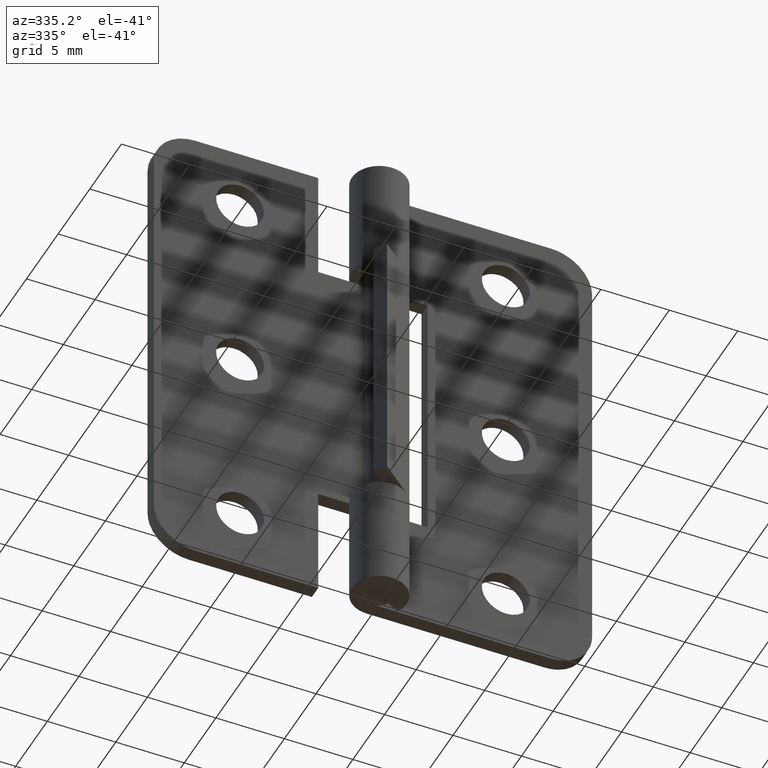
[diagram: clean part render]
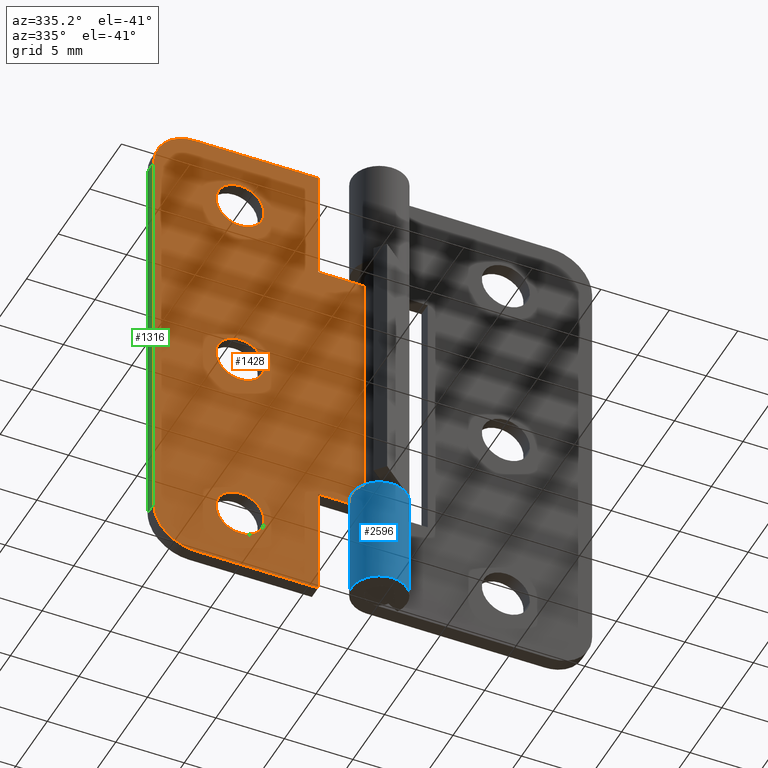
[diagram: same view with three faces highlighted in distinct colors, each labeled with its STEP entity id]
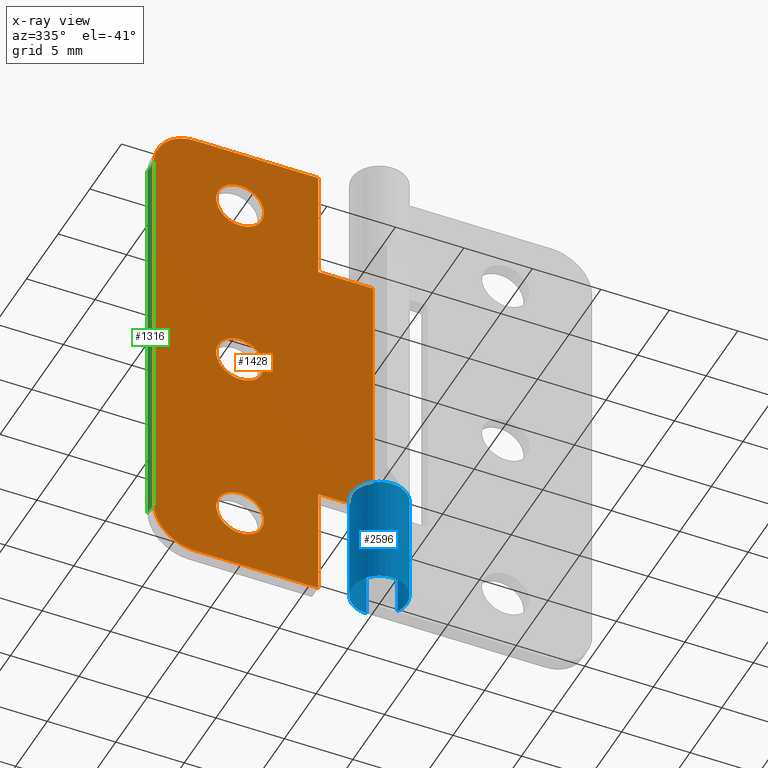
[diagram: x-ray of the same camera — body ghosted, the three highlighted faces saturated]
A machine part, auxiliary view with three faces highlighted in distinct colors.
The next image is the same camera in x-ray (body ghosted, the three faces saturated) — at least one of them is partly hidden behind the body in this view.
Their STEP definitions:

[orange] entity #1428 — the highlighted face is a freeform B-spline surface patch.
#347=CARTESIAN_POINT('',(-7.955391665975188,1.0,31.362696582372578));
#348=VERTEX_POINT('',#347);
#354=CARTESIAN_POINT('',(-9.699997000000000,1.0,33.250000000000000));
#355=VERTEX_POINT('',#354);
#356=CARTESIAN_POINT('',(-7.955391665975188,1.0,31.362696582372582));
#357=CARTESIAN_POINT('',(-7.949997000000001,1.0,31.431242312632406));
#358=CARTESIAN_POINT('',(-7.949997000000001,1.0,31.500000000000000));
#359=CARTESIAN_POINT('',(-7.949997000000001,1.0,33.249999999999993));
#360=CARTESIAN_POINT('',(-9.699997000000000,1.0,33.250000000000000));
#368=(BOUNDED_CURVE()B_SPLINE_CURVE(2,(#356,#357,#358,#359,#360),.UNSPECIFIED.,.F.,.U.)B_SPLINE_CURVE_WITH_KNOTS((3,2,3),(0.736331300612389,0.750000000000000,1.0),.UNSPECIFIED.)CURVE()GEOMETRIC_REPRESENTATION_ITEM()RATIONAL_B_SPLINE_CURVE((0.969723356129288,0.983986122557476,1.0,0.707106781186547,1.0))REPRESENTATION_ITEM(''));
#369=EDGE_CURVE('',#348,#355,#368,.T.);
#371=CARTESIAN_POINT('',(-11.444602334024809,1.0,31.637303417627422));
#372=VERTEX_POINT('',#371);
#373=CARTESIAN_POINT('',(-9.699997000000000,1.0,33.250000000000000));
#374=CARTESIAN_POINT('',(-11.317680360208970,1.0,33.250000000000000));
#375=CARTESIAN_POINT('',(-11.444602334024816,1.0,31.637303417627418));
#383=(BOUNDED_CURVE()B_SPLINE_CURVE(2,(#373,#374,#375),.UNSPECIFIED.,.F.,.U.)B_SPLINE_CURVE_WITH_KNOTS((3,3),(0.0,0.236331300612389),.UNSPECIFIED.)CURVE()GEOMETRIC_REPRESENTATION_ITEM()RATIONAL_B_SPLINE_CURVE((1.0,0.723120658629071,0.969723356129288))REPRESENTATION_ITEM(''));
#384=EDGE_CURVE('',#355,#372,#383,.T.);
#430=CARTESIAN_POINT('',(-9.699997000000000,1.0,29.750000000000000));
#431=VERTEX_POINT('',#430);
#432=CARTESIAN_POINT('',(-11.444602334024809,1.0,31.637303417627429));
#433=CARTESIAN_POINT('',(-11.449997000000003,1.0,31.568757687367601));
#434=CARTESIAN_POINT('',(-11.449997000000000,1.0,31.500000000000000));
#435=CARTESIAN_POINT('',(-11.449997000000003,1.0,29.750000000000007));
#436=CARTESIAN_POINT('',(-9.699997000000000,1.0,29.750000000000000));
#444=(BOUNDED_CURVE()B_SPLINE_CURVE(2,(#432,#433,#434,#435,#436),.UNSPECIFIED.,.F.,.U.)B_SPLINE_CURVE_WITH_KNOTS((3,2,3),(0.236331300612389,0.250000000000000,0.500000000000000),.UNSPECIFIED.)CURVE()GEOMETRIC_REPRESENTATION_ITEM()RATIONAL_B_SPLINE_CURVE((0.969723356129288,0.983986122557476,1.0,0.707106781186547,1.0))REPRESENTATION_ITEM(''));
#445=EDGE_CURVE('',#372,#431,#444,.T.);
#447=CARTESIAN_POINT('',(-9.699997000000000,1.0,29.750000000000000));
#448=CARTESIAN_POINT('',(-8.082313639791032,1.0,29.750000000000004));
#449=CARTESIAN_POINT('',(-7.955391665975188,1.0,31.362696582372578));
#457=(BOUNDED_CURVE()B_SPLINE_CURVE(2,(#447,#448,#449),.UNSPECIFIED.,.F.,.U.)B_SPLINE_CURVE_WITH_KNOTS((3,3),(0.500000000000000,0.736331300612389),.UNSPECIFIED.)CURVE()GEOMETRIC_REPRESENTATION_ITEM()RATIONAL_B_SPLINE_CURVE((1.0,0.723120658629071,0.969723356129288))REPRESENTATION_ITEM(''));
#458=EDGE_CURVE('',#431,#348,#457,.T.);
#529=CARTESIAN_POINT('',(-7.955391665975188,1.0,17.862696582372571));
#530=VERTEX_POINT('',#529);
#536=CARTESIAN_POINT('',(-9.699997000000000,1.0,19.750000000000000));
#537=VERTEX_POINT('',#536);
#538=CARTESIAN_POINT('',(-7.955391665975188,1.0,17.862696582372575));
#539=CARTESIAN_POINT('',(-7.949997000000001,1.0,17.931242312632399));
#540=CARTESIAN_POINT('',(-7.949997000000001,1.0,18.0));
#541=CARTESIAN_POINT('',(-7.949997000000001,1.0,19.749999999999996));
#542=CARTESIAN_POINT('',(-9.699997000000000,1.0,19.750000000000000));
#550=(BOUNDED_CURVE()B_SPLINE_CURVE(2,(#538,#539,#540,#541,#542),.UNSPECIFIED.,.F.,.U.)B_SPLINE_CURVE_WITH_KNOTS((3,2,3),(0.736331300612388,0.750000000000000,1.0),.UNSPECIFIED.)CURVE()GEOMETRIC_REPRESENTATION_ITEM()RATIONAL_B_SPLINE_CURVE((0.969723356129287,0.983986122557476,1.0,0.707106781186547,1.0))REPRESENTATION_ITEM(''));
#551=EDGE_CURVE('',#530,#537,#550,.T.);
#553=CARTESIAN_POINT('',(-11.444602334024809,1.0,18.137303417627429));
#554=VERTEX_POINT('',#553);
#555=CARTESIAN_POINT('',(-9.699997000000000,1.0,19.750000000000000));
#556=CARTESIAN_POINT('',(-11.317680360208964,1.0,19.749999999999993));
#557=CARTESIAN_POINT('',(-11.444602334024809,1.0,18.137303417627432));
#565=(BOUNDED_CURVE()B_SPLINE_CURVE(2,(#555,#556,#557),.UNSPECIFIED.,.F.,.U.)B_SPLINE_CURVE_WITH_KNOTS((3,3),(0.0,0.236331300612388),.UNSPECIFIED.)CURVE()GEOMETRIC_REPRESENTATION_ITEM()RATIONAL_B_SPLINE_CURVE((1.0,0.723120658629072,0.969723356129287))REPRESENTATION_ITEM(''));
#566=EDGE_CURVE('',#537,#554,#565,.T.);
#612=CARTESIAN_POINT('',(-9.699997000000000,1.0,16.250000000000000));
#613=VERTEX_POINT('',#612);
#614=CARTESIAN_POINT('',(-11.444602334024813,1.0,18.137303417627425));
#615=CARTESIAN_POINT('',(-11.449997000000000,1.0,18.068757687367604));
#616=CARTESIAN_POINT('',(-11.449997000000000,1.0,18.0));
#617=CARTESIAN_POINT('',(-11.449997000000003,1.0,16.249999999999993));
#618=CARTESIAN_POINT('',(-9.699997000000000,1.0,16.250000000000000));
#626=(BOUNDED_CURVE()B_SPLINE_CURVE(2,(#614,#615,#616,#617,#618),.UNSPECIFIED.,.F.,.U.)B_SPLINE_CURVE_WITH_KNOTS((3,2,3),(0.236331300612388,0.250000000000000,0.500000000000000),.UNSPECIFIED.)CURVE()GEOMETRIC_REPRESENTATION_ITEM()RATIONAL_B_SPLINE_CURVE((0.969723356129287,0.983986122557476,1.0,0.707106781186547,1.0))REPRESENTATION_ITEM(''));
#627=EDGE_CURVE('',#554,#613,#626,.T.);
#629=CARTESIAN_POINT('',(-9.699997000000000,1.0,16.250000000000000));
#630=CARTESIAN_POINT('',(-8.082313639791032,1.0,16.249999999999996));
#631=CARTESIAN_POINT('',(-7.955391665975188,1.0,17.862696582372571));
#639=(BOUNDED_CURVE()B_SPLINE_CURVE(2,(#629,#630,#631),.UNSPECIFIED.,.F.,.U.)B_SPLINE_CURVE_WITH_KNOTS((3,3),(0.500000000000000,0.736331300612389),.UNSPECIFIED.)CURVE()GEOMETRIC_REPRESENTATION_ITEM()RATIONAL_B_SPLINE_CURVE((1.0,0.723120658629071,0.969723356129288))REPRESENTATION_ITEM(''));
#640=EDGE_CURVE('',#613,#530,#639,.T.);
#711=CARTESIAN_POINT('',(-7.955391665975188,1.0,4.362696582372575));
#712=VERTEX_POINT('',#711);
#718=CARTESIAN_POINT('',(-9.699997000000000,1.0,6.249999999999999));
#719=VERTEX_POINT('',#718);
#720=CARTESIAN_POINT('',(-7.955391665975188,1.0,4.362696582372575));
#721=CARTESIAN_POINT('',(-7.949997000000001,1.0,4.431242312632401));
#722=CARTESIAN_POINT('',(-7.949997000000001,1.0,4.500000000000000));
#723=CARTESIAN_POINT('',(-7.949997000000001,1.0,6.249999999999999));
#724=CARTESIAN_POINT('',(-9.699997000000000,1.0,6.249999999999999));
#732=(BOUNDED_CURVE()B_SPLINE_CURVE(2,(#720,#721,#722,#723,#724),.UNSPECIFIED.,.F.,.U.)B_SPLINE_CURVE_WITH_KNOTS((3,2,3),(0.736331300612389,0.750000000000000,1.0),.UNSPECIFIED.)CURVE()GEOMETRIC_REPRESENTATION_ITEM()RATIONAL_B_SPLINE_CURVE((0.969723356129287,0.983986122557476,1.0,0.707106781186547,1.0))REPRESENTATION_ITEM(''));
#733=EDGE_CURVE('',#712,#719,#732,.T.);
#735=CARTESIAN_POINT('',(-11.444602334024809,1.0,4.637303417627425));
#736=VERTEX_POINT('',#735);
#737=CARTESIAN_POINT('',(-9.699997000000000,1.0,6.249999999999999));
#738=CARTESIAN_POINT('',(-11.317680360208964,1.0,6.249999999999998));
#739=CARTESIAN_POINT('',(-11.444602334024818,1.0,4.637303417627424));
#747=(BOUNDED_CURVE()B_SPLINE_CURVE(2,(#737,#738,#739),.UNSPECIFIED.,.F.,.U.)B_SPLINE_CURVE_WITH_KNOTS((3,3),(0.0,0.236331300612389),.UNSPECIFIED.)CURVE()GEOMETRIC_REPRESENTATION_ITEM()RATIONAL_B_SPLINE_CURVE((1.0,0.723120658629071,0.969723356129287))REPRESENTATION_ITEM(''));
#748=EDGE_CURVE('',#719,#736,#747,.T.);
#794=CARTESIAN_POINT('',(-9.699997000000000,1.0,2.750000000000000));
#795=VERTEX_POINT('',#794);
#796=CARTESIAN_POINT('',(-11.444602334024818,1.0,4.637303417627424));
#797=CARTESIAN_POINT('',(-11.449996999999996,1.0,4.568757687367600));
#798=CARTESIAN_POINT('',(-11.449997000000000,1.0,4.500000000000000));
#799=CARTESIAN_POINT('',(-11.449997000000003,1.0,2.749999999999999));
#800=CARTESIAN_POINT('',(-9.699997000000000,1.0,2.750000000000000));
#808=(BOUNDED_CURVE()B_SPLINE_CURVE(2,(#796,#797,#798,#799,#800),.UNSPECIFIED.,.F.,.U.)B_SPLINE_CURVE_WITH_KNOTS((3,2,3),(0.236331300612389,0.250000000000000,0.500000000000000),.UNSPECIFIED.)CURVE()GEOMETRIC_REPRESENTATION_ITEM()RATIONAL_B_SPLINE_CURVE((0.969723356129287,0.983986122557476,1.0,0.707106781186547,1.0))REPRESENTATION_ITEM(''));
#809=EDGE_CURVE('',#736,#795,#808,.T.);
#811=CARTESIAN_POINT('',(-9.699997000000000,1.0,2.750000000000000));
#812=CARTESIAN_POINT('',(-8.082313639791032,1.0,2.750000000000000));
#813=CARTESIAN_POINT('',(-7.955391665975188,1.0,4.362696582372576));
#821=(BOUNDED_CURVE()B_SPLINE_CURVE(2,(#811,#812,#813),.UNSPECIFIED.,.F.,.U.)B_SPLINE_CURVE_WITH_KNOTS((3,3),(0.500000000000000,0.736331300612389),.UNSPECIFIED.)CURVE()GEOMETRIC_REPRESENTATION_ITEM()RATIONAL_B_SPLINE_CURVE((1.0,0.723120658629071,0.969723356129288))REPRESENTATION_ITEM(''));
#822=EDGE_CURVE('',#795,#712,#821,.T.);
#855=CARTESIAN_POINT('',(-13.0,1.0,36.0));
#856=VERTEX_POINT('',#855);
#857=CARTESIAN_POINT('',(-16.0,1.0,33.0));
#858=VERTEX_POINT('',#857);
#859=CARTESIAN_POINT('',(-13.0,1.0,36.000000000000007));
#860=CARTESIAN_POINT('',(-15.999999999999998,1.0,36.000000000000014));
#861=CARTESIAN_POINT('',(-16.0,1.0,33.0));
#869=(BOUNDED_CURVE()B_SPLINE_CURVE(2,(#859,#860,#861),.UNSPECIFIED.,.F.,.U.)CURVE()GEOMETRIC_REPRESENTATION_ITEM()QUASI_UNIFORM_CURVE()RATIONAL_B_SPLINE_CURVE((1.0,0.707106781186548,1.0))REPRESENTATION_ITEM(''));
#870=EDGE_CURVE('',#856,#858,#869,.T.);
#916=CARTESIAN_POINT('',(-16.0,1.0,3.0));
#917=VERTEX_POINT('',#916);
#918=CARTESIAN_POINT('',(-13.0,1.0,0.0));
#919=VERTEX_POINT('',#918);
#920=CARTESIAN_POINT('',(-16.0,1.0,3.0));
#921=CARTESIAN_POINT('',(-15.999999999999998,1.0,0.0));
#922=CARTESIAN_POINT('',(-13.0,1.0,0.0));
#930=(BOUNDED_CURVE()B_SPLINE_CURVE(2,(#920,#921,#922),.UNSPECIFIED.,.F.,.U.)CURVE()GEOMETRIC_REPRESENTATION_ITEM()QUASI_UNIFORM_CURVE()RATIONAL_B_SPLINE_CURVE((1.0,0.707106781186548,1.0))REPRESENTATION_ITEM(''));
#931=EDGE_CURVE('',#917,#919,#930,.T.);
#968=CARTESIAN_POINT('',(-4.0,1.0,8.250000000000091));
#969=VERTEX_POINT('',#968);
#1022=CARTESIAN_POINT('',(6.123032E-017,1.0,8.250000000000091));
#1023=VERTEX_POINT('',#1022);
#1039=CARTESIAN_POINT('',(6.123032E-017,1.0,8.250000000000091));
#1040=CARTESIAN_POINT('',(-4.0,1.0,8.250000000000091));
#1041=QUASI_UNIFORM_CURVE('',1,(#1039,#1040),.UNSPECIFIED.,.F.,.U.);
#1042=EDGE_CURVE('',#1023,#969,#1041,.T.);
#1052=CARTESIAN_POINT('',(-4.0,1.0,27.750000000000000));
#1053=VERTEX_POINT('',#1052);
#1061=CARTESIAN_POINT('',(6.123032E-017,1.0,27.750000000000000));
#1062=VERTEX_POINT('',#1061);
#1063=CARTESIAN_POINT('',(6.123032E-017,1.0,27.750000000000000));
#1064=CARTESIAN_POINT('',(-4.0,1.0,27.750000000000000));
#1065=QUASI_UNIFORM_CURVE('',1,(#1063,#1064),.UNSPECIFIED.,.F.,.U.);
#1066=EDGE_CURVE('',#1062,#1053,#1065,.T.);
#1156=CARTESIAN_POINT('',(6.123032E-017,1.0,27.750000000000000));
#1157=CARTESIAN_POINT('',(6.123032E-017,1.0,8.250000000000091));
#1158=QUASI_UNIFORM_CURVE('',1,(#1156,#1157),.UNSPECIFIED.,.F.,.U.);
#1159=EDGE_CURVE('',#1062,#1023,#1158,.T.);
#1246=CARTESIAN_POINT('',(-4.0,1.0,36.0));
#1247=VERTEX_POINT('',#1246);
#1248=CARTESIAN_POINT('',(-4.0,1.0,27.750000000000000));
#1249=CARTESIAN_POINT('',(-4.0,1.0,36.0));
#1250=QUASI_UNIFORM_CURVE('',1,(#1248,#1249),.UNSPECIFIED.,.F.,.U.);
#1251=EDGE_CURVE('',#1053,#1247,#1250,.T.);
#1274=CARTESIAN_POINT('',(-4.0,1.0,0.0));
#1275=VERTEX_POINT('',#1274);
#1276=CARTESIAN_POINT('',(-13.0,1.0,0.0));
#1277=CARTESIAN_POINT('',(-4.0,1.0,0.0));
#1278=QUASI_UNIFORM_CURVE('',1,(#1276,#1277),.UNSPECIFIED.,.F.,.U.);
#1279=EDGE_CURVE('',#919,#1275,#1278,.T.);
#1308=CARTESIAN_POINT('',(-16.0,1.0,33.0));
#1309=CARTESIAN_POINT('',(-16.0,1.0,3.0));
#1310=QUASI_UNIFORM_CURVE('',1,(#1308,#1309),.UNSPECIFIED.,.F.,.U.);
#1311=EDGE_CURVE('',#858,#917,#1310,.T.);
#1328=CARTESIAN_POINT('',(-4.0,1.0,36.0));
#1329=CARTESIAN_POINT('',(-13.0,1.0,36.0));
#1330=QUASI_UNIFORM_CURVE('',1,(#1328,#1329),.UNSPECIFIED.,.F.,.U.);
#1331=EDGE_CURVE('',#1247,#856,#1330,.T.);
#1343=CARTESIAN_POINT('',(-4.0,1.0,0.0));
#1344=CARTESIAN_POINT('',(-4.0,1.0,8.250000000000091));
#1345=QUASI_UNIFORM_CURVE('',1,(#1343,#1344),.UNSPECIFIED.,.F.,.U.);
#1346=EDGE_CURVE('',#1275,#969,#1345,.T.);
#1393=CARTESIAN_POINT('',(-16.799199968988891,1.0,37.798199930225010));
#1394=CARTESIAN_POINT('',(0.799200398142338,1.0,37.798199930225010));
#1395=CARTESIAN_POINT('',(-16.799199968988891,1.0,-1.798200895820258));
#1396=CARTESIAN_POINT('',(0.799200398142338,1.0,-1.798200895820258));
#1397=B_SPLINE_SURFACE_WITH_KNOTS('',1,1,((#1393,#1395),(#1394,#1396)),.UNSPECIFIED.,.F.,.F.,.U.,(2,2),(2,2),(0.0,17.598400367131230),(0.0,39.596400826045269),.UNSPECIFIED.);
#1398=ORIENTED_EDGE('',*,*,#1311,.T.);
#1399=ORIENTED_EDGE('',*,*,#931,.T.);
#1400=ORIENTED_EDGE('',*,*,#1279,.T.);
#1401=ORIENTED_EDGE('',*,*,#1346,.T.);
#1402=ORIENTED_EDGE('',*,*,#1042,.F.);
#1403=ORIENTED_EDGE('',*,*,#1159,.F.);
#1404=ORIENTED_EDGE('',*,*,#1066,.T.);
#1405=ORIENTED_EDGE('',*,*,#1251,.T.);
#1406=ORIENTED_EDGE('',*,*,#1331,.T.);
#1407=ORIENTED_EDGE('',*,*,#870,.T.);
#1408=EDGE_LOOP('',(#1398,#1399,#1400,#1401,#1402,#1403,#1404,#1405,#1406,#1407));
#1409=FACE_OUTER_BOUND('',#1408,.T.);
#1410=ORIENTED_EDGE('',*,*,#822,.F.);
#1411=ORIENTED_EDGE('',*,*,#809,.F.);
#1412=ORIENTED_EDGE('',*,*,#748,.F.);
#1413=ORIENTED_EDGE('',*,*,#733,.F.);
#1414=EDGE_LOOP('',(#1410,#1411,#1412,#1413));
#1415=FACE_BOUND('',#1414,.T.);
#1416=ORIENTED_EDGE('',*,*,#640,.F.);
#1417=ORIENTED_EDGE('',*,*,#627,.F.);
#1418=ORIENTED_EDGE('',*,*,#566,.F.);
#1419=ORIENTED_EDGE('',*,*,#551,.F.);
#1420=EDGE_LOOP('',(#1416,#1417,#1418,#1419));
#1421=FACE_BOUND('',#1420,.T.);
#1422=ORIENTED_EDGE('',*,*,#458,.F.);
#1423=ORIENTED_EDGE('',*,*,#445,.F.);
#1424=ORIENTED_EDGE('',*,*,#384,.F.);
#1425=ORIENTED_EDGE('',*,*,#369,.F.);
#1426=EDGE_LOOP('',(#1422,#1423,#1424,#1425));
#1427=FACE_BOUND('',#1426,.T.);
#1428=ADVANCED_FACE('',(#1409,#1415,#1421,#1427),#1397,.F.);

[blue] entity #2596 — the highlighted face is a freeform B-spline surface patch.
#2159=CARTESIAN_POINT('',(-3.673807E-016,2.0,8.250000000000000));
#2160=VERTEX_POINT('',#2159);
#2166=CARTESIAN_POINT('',(1.759971590679805,0.950000000000000,8.250000000000000));
#2167=VERTEX_POINT('',#2166);
#2168=CARTESIAN_POINT('',(0.0,2.0,8.250000000000000));
#2169=CARTESIAN_POINT('',(-1.523311426391113,2.000000000000000,8.250000000000000));
#2170=CARTESIAN_POINT('',(-1.928096575312494,0.531454227820452,8.250000000000000));
#2171=CARTESIAN_POINT('',(-2.332881724233873,-0.937091544359094,8.250000000000000));
#2172=CARTESIAN_POINT('',(-1.024695076595961,-1.717556403731766,8.250000000000000));
#2173=CARTESIAN_POINT('',(0.283491571041951,-2.498021263104438,8.250000000000000));
#2174=CARTESIAN_POINT('',(1.383518044628767,-1.444256840103794,8.250000000000000));
#2175=CARTESIAN_POINT('',(2.483544518215582,-0.390492417103149,8.250000000000000));
#2176=CARTESIAN_POINT('',(1.759971590679806,0.949999999999997,8.250000000000000));
#2184=(BOUNDED_CURVE()B_SPLINE_CURVE(2,(#2168,#2169,#2170,#2171,#2172,#2173,#2174,#2175,#2176),.UNSPECIFIED.,.F.,.U.)B_SPLINE_CURVE_WITH_KNOTS((3,2,2,2,3),(0.0,0.250000000000000,0.500000000000000,0.750000000000000,1.0),.UNSPECIFIED.)CURVE()GEOMETRIC_REPRESENTATION_ITEM()RATIONAL_B_SPLINE_CURVE((1.0,0.795527219493534,1.0,0.795527219493534,1.0,0.795527219493534,1.0,0.795527219493534,1.0))REPRESENTATION_ITEM(''));
#2185=EDGE_CURVE('',#2160,#2167,#2184,.T.);
#2319=CARTESIAN_POINT('',(-3.673819E-016,2.0,0.0));
#2320=VERTEX_POINT('',#2319);
#2355=CARTESIAN_POINT('',(1.759971590679800,0.950000000000000,0.0));
#2356=VERTEX_POINT('',#2355);
#2362=CARTESIAN_POINT('',(1.759971590679803,0.950000000000002,0.0));
#2363=CARTESIAN_POINT('',(2.483544518215584,-0.390492417103142,0.0));
#2364=CARTESIAN_POINT('',(1.383518044628770,-1.444256840103790,0.0));
#2365=CARTESIAN_POINT('',(0.283491571041956,-2.498021263104437,0.0));
#2366=CARTESIAN_POINT('',(-1.024695076595959,-1.717556403731767,0.0));
#2367=CARTESIAN_POINT('',(-2.332881724233873,-0.937091544359097,0.0));
#2368=CARTESIAN_POINT('',(-1.928096575312494,0.531454227820451,0.0));
#2369=CARTESIAN_POINT('',(-1.523311426391115,2.000000000000000,0.0));
#2370=CARTESIAN_POINT('',(0.0,2.0,0.0));
#2378=(BOUNDED_CURVE()B_SPLINE_CURVE(2,(#2362,#2363,#2364,#2365,#2366,#2367,#2368,#2369,#2370),.UNSPECIFIED.,.F.,.U.)B_SPLINE_CURVE_WITH_KNOTS((3,2,2,2,3),(0.0,0.250000000000000,0.500000000000000,0.750000000000000,1.0),.UNSPECIFIED.)CURVE()GEOMETRIC_REPRESENTATION_ITEM()RATIONAL_B_SPLINE_CURVE((1.0,0.795527219493534,1.0,0.795527219493534,1.0,0.795527219493534,1.0,0.795527219493534,1.0))REPRESENTATION_ITEM(''));
#2379=EDGE_CURVE('',#2356,#2320,#2378,.T.);
#2517=CARTESIAN_POINT('',(1.759971590679805,0.950000000000000,8.250000000000000));
#2518=CARTESIAN_POINT('',(1.759971590679800,0.950000000000000,0.0));
#2519=QUASI_UNIFORM_CURVE('',1,(#2517,#2518),.UNSPECIFIED.,.F.,.U.);
#2520=EDGE_CURVE('',#2167,#2356,#2519,.T.);
#2564=CARTESIAN_POINT('',(0.017453070996746,1.999923846128342,8.456250000000001));
#2565=CARTESIAN_POINT('',(0.017453070996746,1.999923846128342,-0.211406250000001));
#2566=CARTESIAN_POINT('',(-2.394320411595831,2.020971074452183,8.456250000000001));
#2567=CARTESIAN_POINT('',(-2.394320411595831,2.020971074452183,-0.211406250000001));
#2568=CARTESIAN_POINT('',(-1.968596930263859,-0.353024257177479,8.456250000000001));
#2569=CARTESIAN_POINT('',(-1.968596930263859,-0.353024257177479,-0.211406250000001));
#2570=CARTESIAN_POINT('',(-1.542873448931886,-2.727019588807141,8.456250000000001));
#2571=CARTESIAN_POINT('',(-1.542873448931886,-2.727019588807141,-0.211406250000001));
#2572=CARTESIAN_POINT('',(0.711301523629753,-1.869237850697977,8.456250000000001));
#2573=CARTESIAN_POINT('',(0.711301523629753,-1.869237850697977,-0.211406250000001));
#2574=CARTESIAN_POINT('',(2.965476496191392,-1.011456112588812,8.456250000000001));
#2575=CARTESIAN_POINT('',(2.965476496191392,-1.011456112588812,-0.211406250000001));
#2576=CARTESIAN_POINT('',(1.705280328708185,1.044997129431896,8.456250000000001));
#2577=CARTESIAN_POINT('',(1.705280328708185,1.044997129431896,-0.211406250000001));
#2585=(BOUNDED_SURFACE()B_SPLINE_SURFACE(1,2,((#2564,#2566,#2568,#2570,#2572,#2574,#2576),(#2565,#2567,#2569,#2571,#2573,#2575,#2577)),.UNSPECIFIED.,.F.,.F.,.U.)B_SPLINE_SURFACE_WITH_KNOTS((2,2),(3,2,2,3),(0.0,8.667656250000004),(0.0,3.758831008106936,7.517662016213872,11.276493024320811),.UNSPECIFIED.)GEOMETRIC_REPRESENTATION_ITEM()RATIONAL_B_SPLINE_SURFACE(((1.0,0.638320090924328,1.0,0.638320090924328,1.0,0.638320090924328,1.0),(1.0,0.638320090924328,1.0,0.638320090924328,1.0,0.638320090924328,1.0)))REPRESENTATION_ITEM('')SURFACE());
#2586=ORIENTED_EDGE('',*,*,#2185,.F.);
#2587=CARTESIAN_POINT('',(-3.673807E-016,2.0,8.250000000000000));
#2588=CARTESIAN_POINT('',(-3.673819E-016,2.0,0.0));
#2589=QUASI_UNIFORM_CURVE('',1,(#2587,#2588),.UNSPECIFIED.,.F.,.U.);
#2590=EDGE_CURVE('',#2160,#2320,#2589,.T.);
#2591=ORIENTED_EDGE('',*,*,#2590,.T.);
#2592=ORIENTED_EDGE('',*,*,#2379,.F.);
#2593=ORIENTED_EDGE('',*,*,#2520,.F.);
#2594=EDGE_LOOP('',(#2586,#2591,#2592,#2593));
#2595=FACE_OUTER_BOUND('',#2594,.T.);
#2596=ADVANCED_FACE('',(#2595),#2585,.T.);

[green] entity #1316 — the highlighted face is a freeform B-spline surface patch.
#857=CARTESIAN_POINT('',(-16.0,1.0,33.0));
#858=VERTEX_POINT('',#857);
#879=CARTESIAN_POINT('',(-16.0,2.0,33.0));
#880=VERTEX_POINT('',#879);
#894=CARTESIAN_POINT('',(-16.0,1.0,33.0));
#895=CARTESIAN_POINT('',(-16.0,2.0,33.0));
#896=QUASI_UNIFORM_CURVE('',1,(#894,#895),.UNSPECIFIED.,.F.,.U.);
#897=EDGE_CURVE('',#858,#880,#896,.T.);
#916=CARTESIAN_POINT('',(-16.0,1.0,3.0));
#917=VERTEX_POINT('',#916);
#933=CARTESIAN_POINT('',(-16.0,2.0,3.0));
#934=VERTEX_POINT('',#933);
#935=CARTESIAN_POINT('',(-16.0,2.0,3.0));
#936=CARTESIAN_POINT('',(-16.0,1.0,3.0));
#937=QUASI_UNIFORM_CURVE('',1,(#935,#936),.UNSPECIFIED.,.F.,.U.);
#938=EDGE_CURVE('',#934,#917,#937,.T.);
#1297=CARTESIAN_POINT('',(-16.0,0.950050001938194,34.498499941854178));
#1298=CARTESIAN_POINT('',(-16.0,0.950050001938194,1.501499253483117));
#1299=CARTESIAN_POINT('',(-16.0,2.049950024883896,34.498499941854178));
#1300=CARTESIAN_POINT('',(-16.0,2.049950024883896,1.501499253483117));
#1301=B_SPLINE_SURFACE_WITH_KNOTS('',1,1,((#1297,#1299),(#1298,#1300)),.UNSPECIFIED.,.F.,.F.,.U.,(2,2),(2,2),(0.0,32.997000688371060),(0.041708334948495,0.958291687403247),.UNSPECIFIED.);
#1302=CARTESIAN_POINT('',(-16.0,2.0,33.0));
#1303=CARTESIAN_POINT('',(-16.0,2.0,3.0));
#1304=QUASI_UNIFORM_CURVE('',1,(#1302,#1303),.UNSPECIFIED.,.F.,.U.);
#1305=EDGE_CURVE('',#880,#934,#1304,.T.);
#1306=ORIENTED_EDGE('',*,*,#1305,.T.);
#1307=ORIENTED_EDGE('',*,*,#938,.T.);
#1308=CARTESIAN_POINT('',(-16.0,1.0,33.0));
#1309=CARTESIAN_POINT('',(-16.0,1.0,3.0));
#1310=QUASI_UNIFORM_CURVE('',1,(#1308,#1309),.UNSPECIFIED.,.F.,.U.);
#1311=EDGE_CURVE('',#858,#917,#1310,.T.);
#1312=ORIENTED_EDGE('',*,*,#1311,.F.);
#1313=ORIENTED_EDGE('',*,*,#897,.T.);
#1314=EDGE_LOOP('',(#1306,#1307,#1312,#1313));
#1315=FACE_OUTER_BOUND('',#1314,.T.);
#1316=ADVANCED_FACE('',(#1315),#1301,.F.);